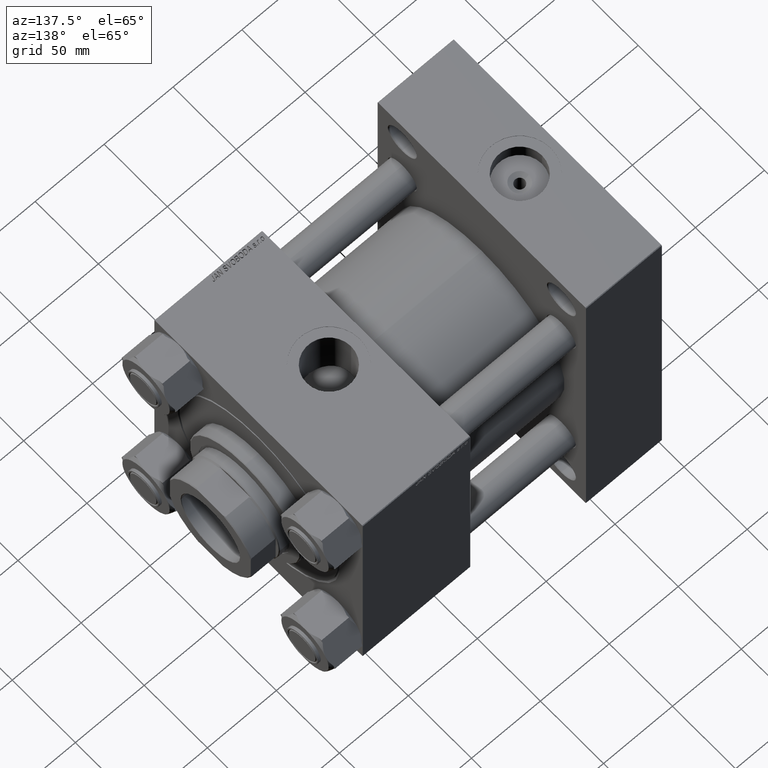
[diagram: clean part render]
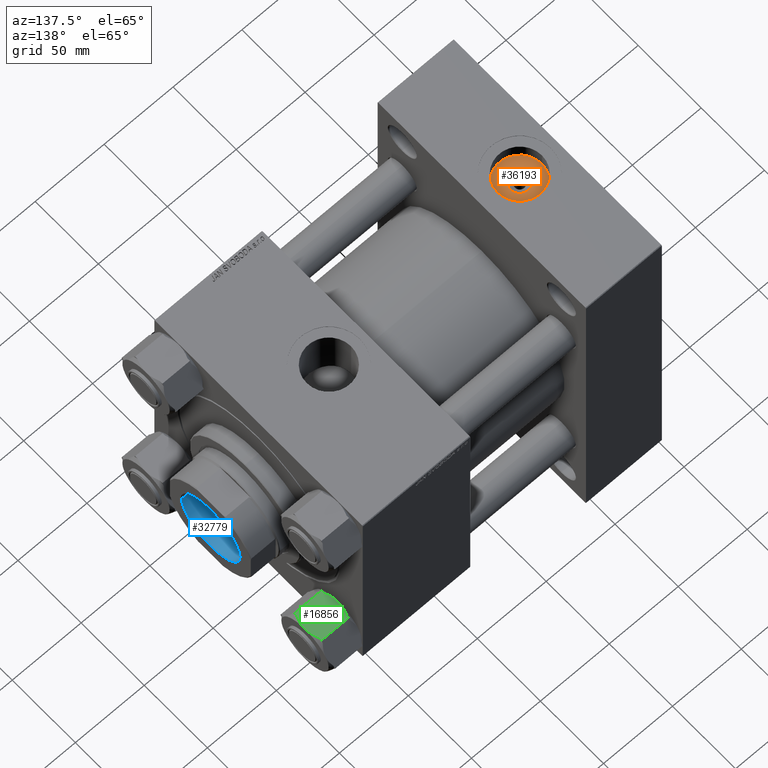
[diagram: same view with three faces highlighted in distinct colors, each labeled with its STEP entity id]
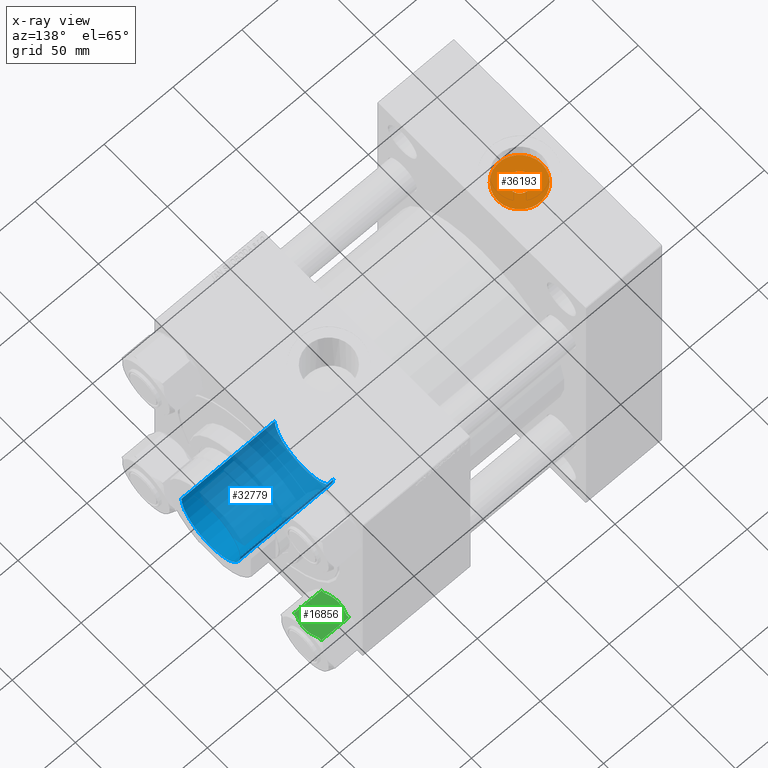
[diagram: x-ray of the same camera — body ghosted, the three highlighted faces saturated]
A machine part, auxiliary view with three faces highlighted in distinct colors.
The next image is the same camera in x-ray (body ghosted, the three faces saturated) — at least one of them is partly hidden behind the body in this view.
Their STEP definitions:

[orange] entity #36193 — the highlighted planar face has unit normal (0, 0, 1).
#858 = DIRECTION ( 'NONE',  ( 1.000000000000000000, 0.000000000000000000, -0.000000000000000000 ) ) ;
#998 = EDGE_LOOP ( 'NONE', ( #1712, #30792 ) ) ;
#1712 = ORIENTED_EDGE ( 'NONE', *, *, #50250, .T. ) ;
#1733 = AXIS2_PLACEMENT_3D ( 'NONE', #47552, #21243, #36825 ) ;
#4343 = VERTEX_POINT ( 'NONE', #9515 ) ;
#4689 = DIRECTION ( 'NONE',  ( 0.000000000000000000, 0.000000000000000000, 1.000000000000000000 ) ) ;
#5379 = CIRCLE ( 'NONE', #20868, 6.640000000000031655 ) ;
#8162 = DIRECTION ( 'NONE',  ( 1.000000000000000000, 0.000000000000000000, 0.000000000000000000 ) ) ;
#8654 = DIRECTION ( 'NONE',  ( -0.000000000000000000, -0.000000000000000000, -1.000000000000000000 ) ) ;
#9515 = CARTESIAN_POINT ( 'NONE',  ( 43.62000000000000455, -2.250935128525057001E-14, 112.7000000000000028 ) ) ;
#11496 = CARTESIAN_POINT ( 'NONE',  ( 27.50000000000000000, -2.250935128525057001E-14, 112.7000000000000028 ) ) ;
#11859 = FACE_BOUND ( 'NONE', #23104, .T. ) ;
#13069 = AXIS2_PLACEMENT_3D ( 'NONE', #43648, #8654, #39823 ) ;
#13881 = CIRCLE ( 'NONE', #13069, 6.640000000000031655 ) ;
#14443 = AXIS2_PLACEMENT_3D ( 'NONE', #16189, #4689, #858 ) ;
#16189 = CARTESIAN_POINT ( 'NONE',  ( 27.50000000000000000, -2.250935128525057001E-14, 112.7000000000000028 ) ) ;
#16657 = EDGE_CURVE ( 'NONE', #17804, #4343, #18508, .T. ) ;
#17141 = VERTEX_POINT ( 'NONE', #23176 ) ;
#17804 = VERTEX_POINT ( 'NONE', #35005 ) ;
#18423 = EDGE_CURVE ( 'NONE', #17141, #39329, #5379, .T. ) ;
#18508 = CIRCLE ( 'NONE', #38104, 16.12000000000000455 ) ;
#20868 = AXIS2_PLACEMENT_3D ( 'NONE', #43803, #21065, #39715 ) ;
#21065 = DIRECTION ( 'NONE',  ( -0.000000000000000000, -0.000000000000000000, -1.000000000000000000 ) ) ;
#21243 = DIRECTION ( 'NONE',  ( 0.000000000000000000, 0.000000000000000000, 1.000000000000000000 ) ) ;
#23104 = EDGE_LOOP ( 'NONE', ( #23690, #32387 ) ) ;
#23176 = CARTESIAN_POINT ( 'NONE',  ( 34.14000000000002899, -2.250935128525057001E-14, 112.7000000000000028 ) ) ;
#23690 = ORIENTED_EDGE ( 'NONE', *, *, #18423, .T. ) ;
#24102 = PLANE ( 'NONE',  #14443 ) ;
#29382 = CARTESIAN_POINT ( 'NONE',  ( 20.85999999999996390, -2.169618581061672396E-14, 112.7000000000000028 ) ) ;
#30792 = ORIENTED_EDGE ( 'NONE', *, *, #16657, .T. ) ;
#31649 = DIRECTION ( 'NONE',  ( 0.000000000000000000, 0.000000000000000000, 1.000000000000000000 ) ) ;
#32387 = ORIENTED_EDGE ( 'NONE', *, *, #48285, .T. ) ;
#35005 = CARTESIAN_POINT ( 'NONE',  ( 11.37999999999999012, -2.053522064502503677E-14, 112.7000000000000028 ) ) ;
#35610 = FACE_OUTER_BOUND ( 'NONE', #998, .T. ) ;
#36193 = ADVANCED_FACE ( 'NONE', ( #11859, #35610 ), #24102, .T. ) ;
#36825 = DIRECTION ( 'NONE',  ( 1.000000000000000000, 0.000000000000000000, 0.000000000000000000 ) ) ;
#38104 = AXIS2_PLACEMENT_3D ( 'NONE', #11496, #31649, #8162 ) ;
#39329 = VERTEX_POINT ( 'NONE', #29382 ) ;
#39715 = DIRECTION ( 'NONE',  ( 1.000000000000000000, 0.000000000000000000, 0.000000000000000000 ) ) ;
#39823 = DIRECTION ( 'NONE',  ( 1.000000000000000000, 0.000000000000000000, 0.000000000000000000 ) ) ;
#43648 = CARTESIAN_POINT ( 'NONE',  ( 27.50000000000000000, -2.250935128525057001E-14, 112.7000000000000028 ) ) ;
#43803 = CARTESIAN_POINT ( 'NONE',  ( 27.50000000000000000, -2.250935128525057001E-14, 112.7000000000000028 ) ) ;
#47552 = CARTESIAN_POINT ( 'NONE',  ( 27.50000000000000000, -2.250935128525057001E-14, 112.7000000000000028 ) ) ;
#48285 = EDGE_CURVE ( 'NONE', #39329, #17141, #13881, .T. ) ;
#49040 = CIRCLE ( 'NONE', #1733, 16.12000000000000455 ) ;
#50250 = EDGE_CURVE ( 'NONE', #4343, #17804, #49040, .T. ) ;

[blue] entity #32779 — the highlighted cylindrical surface (partial cylindrical patch) has radius 23.25 mm, axis along (1, 0, 0).
#1015 = EDGE_CURVE ( 'NONE', #4030, #27596, #38856, .T. ) ;
#4030 = VERTEX_POINT ( 'NONE', #38910 ) ;
#4341 = CARTESIAN_POINT ( 'NONE',  ( 23.24999999999999289, 0.000000000000000000, 196.6999999999999602 ) ) ;
#4637 = AXIS2_PLACEMENT_3D ( 'NONE', #10516, #11508, #41440 ) ;
#5849 = DIRECTION ( 'NONE',  ( 1.000000000000000000, 0.000000000000000000, 0.000000000000000000 ) ) ;
#5859 = DIRECTION ( 'NONE',  ( -0.000000000000000000, -0.000000000000000000, 1.000000000000000000 ) ) ;
#9242 = CARTESIAN_POINT ( 'NONE',  ( -23.24999999999999289, 2.847303808017595350E-15, 196.6999999999999602 ) ) ;
#9701 = CARTESIAN_POINT ( 'NONE',  ( 0.000000000000000000, 0.000000000000000000, 196.9999999999999716 ) ) ;
#9875 = VERTEX_POINT ( 'NONE', #4341 ) ;
#10516 = CARTESIAN_POINT ( 'NONE',  ( 0.000000000000000000, 0.000000000000000000, 196.6999999999999602 ) ) ;
#11508 = DIRECTION ( 'NONE',  ( 0.000000000000000000, 0.000000000000000000, 1.000000000000000000 ) ) ;
#12016 = EDGE_CURVE ( 'NONE', #27731, #4030, #30544, .T. ) ;
#12309 = LINE ( 'NONE', #28125, #30683 ) ;
#15362 = CARTESIAN_POINT ( 'NONE',  ( -23.24999999999999289, 2.847303808017595350E-15, 196.9999999999999716 ) ) ;
#16331 = EDGE_CURVE ( 'NONE', #27731, #9875, #12309, .T. ) ;
#17106 = FACE_OUTER_BOUND ( 'NONE', #18228, .T. ) ;
#17155 = ORIENTED_EDGE ( 'NONE', *, *, #37521, .T. ) ;
#18228 = EDGE_LOOP ( 'NONE', ( #41511, #35624, #46700, #17155 ) ) ;
#18883 = VECTOR ( 'NONE', #50357, 1000.000000000000000 ) ;
#24499 = DIRECTION ( 'NONE',  ( 1.000000000000000000, 0.000000000000000000, 0.000000000000000000 ) ) ;
#25001 = CARTESIAN_POINT ( 'NONE',  ( 0.000000000000000000, 0.000000000000000000, 128.9999999999999716 ) ) ;
#26678 = CIRCLE ( 'NONE', #4637, 23.24999999999999289 ) ;
#27596 = VERTEX_POINT ( 'NONE', #9242 ) ;
#27731 = VERTEX_POINT ( 'NONE', #27809 ) ;
#27809 = CARTESIAN_POINT ( 'NONE',  ( 23.24999999999998579, 0.000000000000000000, 128.9999999999999716 ) ) ;
#28125 = CARTESIAN_POINT ( 'NONE',  ( 23.24999999999999289, 0.000000000000000000, 196.9999999999999716 ) ) ;
#28313 = DIRECTION ( 'NONE',  ( -0.000000000000000000, -0.000000000000000000, 1.000000000000000000 ) ) ;
#29834 = AXIS2_PLACEMENT_3D ( 'NONE', #9701, #5859, #24499 ) ;
#30544 = CIRCLE ( 'NONE', #33847, 23.24999999999998579 ) ;
#30683 = VECTOR ( 'NONE', #48320, 1000.000000000000000 ) ;
#32779 = ADVANCED_FACE ( 'NONE', ( #17106 ), #39841, .F. ) ;
#33847 = AXIS2_PLACEMENT_3D ( 'NONE', #25001, #28313, #5849 ) ;
#35624 = ORIENTED_EDGE ( 'NONE', *, *, #12016, .F. ) ;
#37521 = EDGE_CURVE ( 'NONE', #9875, #27596, #26678, .T. ) ;
#38856 = LINE ( 'NONE', #15362, #18883 ) ;
#38910 = CARTESIAN_POINT ( 'NONE',  ( -23.24999999999998579, 2.847303808017594561E-15, 128.9999999999999716 ) ) ;
#39841 = CYLINDRICAL_SURFACE ( 'NONE', #29834, 23.24999999999999289 ) ;
#41440 = DIRECTION ( 'NONE',  ( 1.000000000000000000, 0.000000000000000000, 0.000000000000000000 ) ) ;
#41511 = ORIENTED_EDGE ( 'NONE', *, *, #1015, .F. ) ;
#46700 = ORIENTED_EDGE ( 'NONE', *, *, #16331, .T. ) ;
#48320 = DIRECTION ( 'NONE',  ( -0.000000000000000000, -0.000000000000000000, 1.000000000000000000 ) ) ;
#50357 = DIRECTION ( 'NONE',  ( -0.000000000000000000, -0.000000000000000000, 1.000000000000000000 ) ) ;

[green] entity #16856 — the highlighted planar face has unit normal (-0, 0, -1).
#988 = FACE_OUTER_BOUND ( 'NONE', #2042, .T. ) ;
#1335 = VERTEX_POINT ( 'NONE', #33725 ) ;
#2042 = EDGE_LOOP ( 'NONE', ( #29696, #21757, #4610, #4563, #8829, #11071, #47474, #48036, #44677, #21134 ) ) ;
#2433 = CARTESIAN_POINT ( 'NONE',  ( -6.014330298555141674, -18.72346922981957107, -23.06950926946396763 ) ) ;
#2594 = CARTESIAN_POINT ( 'NONE',  ( 3.004629197474318457E-15, -18.72346922981956752, 0.000000000000000000 ) ) ;
#2683 = CARTESIAN_POINT ( 'NONE',  ( 3.004629197474318457E-15, -18.72346922981956752, -24.00000000000000000 ) ) ;
#3587 = CARTESIAN_POINT ( 'NONE',  ( -7.462432408233331316, -18.72346922981957107, -1.420646699533969048 ) ) ;
#3619 = CARTESIAN_POINT ( 'NONE',  ( 3.806221811192783466, -18.72346922981956396, -0.3694591241840480822 ) ) ;
#4563 = ORIENTED_EDGE ( 'NONE', *, *, #27226, .F. ) ;
#4610 = ORIENTED_EDGE ( 'NONE', *, *, #7303, .F. ) ;
#5524 = LINE ( 'NONE', #40530, #23315 ) ;
#5583 = LINE ( 'NONE', #47463, #34674 ) ;
#5590 = VERTEX_POINT ( 'NONE', #48576 ) ;
#7188 = CARTESIAN_POINT ( 'NONE',  ( -3.046460787050289998, -18.72346922981957462, -0.1914528163786858583 ) ) ;
#7303 = EDGE_CURVE ( 'NONE', #5590, #10592, #48661, .T. ) ;
#7438 = CARTESIAN_POINT ( 'NONE',  ( -10.81000000000000227, -18.72346922981957107, -22.00000000000000000 ) ) ;
#8829 = ORIENTED_EDGE ( 'NONE', *, *, #17650, .F. ) ;
#8926 = CARTESIAN_POINT ( 'NONE',  ( 10.81000000000000405, -18.72346922981956752, -24.00000000000000000 ) ) ;
#10452 = EDGE_CURVE ( 'NONE', #42929, #28512, #32011, .T. ) ;
#10592 = VERTEX_POINT ( 'NONE', #48110 ) ;
#11071 = ORIENTED_EDGE ( 'NONE', *, *, #31490, .F. ) ;
#11168 = CARTESIAN_POINT ( 'NONE',  ( 6.004110770065000047, -18.72346922981956396, -23.07284951269627271 ) ) ;
#11256 = CARTESIAN_POINT ( 'NONE',  ( -6.004110770064991165, -18.72346922981957107, -0.9271504873037145211 ) ) ;
#11290 = CARTESIAN_POINT ( 'NONE',  ( 0.7711943830713889891, -18.72346922981957107, -0.01195010307162253961 ) ) ;
#11536 = CARTESIAN_POINT ( 'NONE',  ( 3.058371725687362375, -18.72346922981956752, -0.2332142928950717009 ) ) ;
#12126 = VERTEX_POINT ( 'NONE', #24486 ) ;
#12795 = CARTESIAN_POINT ( 'NONE',  ( 8.882222521378219326, -18.72346922981957107, -2.000000000000000000 ) ) ;
#13619 = CARTESIAN_POINT ( 'NONE',  ( 10.81000000000000405, -18.72346922981956752, -22.00000000000000000 ) ) ;
#14004 = LINE ( 'NONE', #24982, #28416 ) ;
#14895 = EDGE_CURVE ( 'NONE', #28512, #21635, #5524, .T. ) ;
#15375 = CARTESIAN_POINT ( 'NONE',  ( 5.284196261866815902, -18.72346922981957107, -0.7181181227872849293 ) ) ;
#16555 = DIRECTION ( 'NONE',  ( 1.000000000000000000, 1.604739570746352049E-16, -0.000000000000000000 ) ) ;
#16856 = ADVANCED_FACE ( 'NONE', ( #988 ), #36515, .F. ) ;
#17077 = DIRECTION ( 'NONE',  ( -0.000000000000000000, -0.000000000000000000, 1.000000000000000000 ) ) ;
#17501 = CARTESIAN_POINT ( 'NONE',  ( -0.7711943830713903214, -18.72346922981957107, -23.98804989692839129 ) ) ;
#17524 = DIRECTION ( 'NONE',  ( -0.000000000000000000, -0.000000000000000000, 1.000000000000000000 ) ) ;
#17650 = EDGE_CURVE ( 'NONE', #42537, #1335, #22434, .T. ) ;
#17849 = CARTESIAN_POINT ( 'NONE',  ( -10.81000000000000227, -18.72346922981957107, -2.000000000000001776 ) ) ;
#18950 = CARTESIAN_POINT ( 'NONE',  ( 3.004629197474318457E-15, -18.72346922981956752, 0.000000000000000000 ) ) ;
#19322 = CARTESIAN_POINT ( 'NONE',  ( 8.882222521378228208, -18.72346922981957107, -22.00000000000000000 ) ) ;
#19928 = VERTEX_POINT ( 'NONE', #13619 ) ;
#21134 = ORIENTED_EDGE ( 'NONE', *, *, #31699, .F. ) ;
#21635 = VERTEX_POINT ( 'NONE', #17849 ) ;
#21757 = ORIENTED_EDGE ( 'NONE', *, *, #40529, .T. ) ;
#22434 = B_SPLINE_CURVE_WITH_KNOTS ( 'NONE', 3,
 ( #22992, #22504, #3587, #11256, #26335, #7188, #33761, #2594 ),
 .UNSPECIFIED., .F., .F.,
 ( 4, 2, 2, 4 ),
 ( 0.02914159164821653047, 0.03142872273350533208, 0.03371585381879412674, 0.03829011598937172300 ),
 .UNSPECIFIED. ) ;
#22457 = EDGE_CURVE ( 'NONE', #19928, #12126, #32596, .T. ) ;
#22504 = CARTESIAN_POINT ( 'NONE',  ( -8.180319050237796930, -18.72346922981957107, -1.699159308219204023 ) ) ;
#22598 = AXIS2_PLACEMENT_3D ( 'NONE', #8926, #28315, #43919 ) ;
#22631 = VECTOR ( 'NONE', #39483, 1000.000000000000000 ) ;
#22992 = CARTESIAN_POINT ( 'NONE',  ( -8.882222521378212221, -18.72346922981957107, -2.000000000000000000 ) ) ;
#23315 = VECTOR ( 'NONE', #17524, 1000.000000000000000 ) ;
#24486 = CARTESIAN_POINT ( 'NONE',  ( 8.882222521378228208, -18.72346922981957107, -22.00000000000000000 ) ) ;
#24982 = CARTESIAN_POINT ( 'NONE',  ( 10.81000000000000405, -18.72346922981956752, -24.00000000000000000 ) ) ;
#25161 = CARTESIAN_POINT ( 'NONE',  ( -8.882222521378221103, -18.72346922981957107, -22.00000000000000000 ) ) ;
#25406 = CARTESIAN_POINT ( 'NONE',  ( -5.284196261866815014, -18.72346922981957462, -23.28188187721271873 ) ) ;
#25490 = EDGE_CURVE ( 'NONE', #41174, #42929, #34834, .T. ) ;
#25593 = B_SPLINE_CURVE_WITH_KNOTS ( 'NONE', 3,
 ( #18950, #34539, #11290, #26862, #42464, #11536, #3619, #15375, #30952, #46529, #42712, #12795 ),
 .UNSPECIFIED., .F., .F.,
 ( 4, 2, 2, 2, 2, 4 ),
 ( 0.03829011598937172300, 0.03943115666170208394, 0.04057219733403243794, 0.04285427867869315982, 0.04513636002335387476, 0.04741844136801459664 ),
 .UNSPECIFIED. ) ;
#25655 = DIRECTION ( 'NONE',  ( 1.000000000000000000, 1.604739570746352049E-16, -0.000000000000000000 ) ) ;
#26335 = CARTESIAN_POINT ( 'NONE',  ( -5.269460841173472687, -18.72346922981957107, -0.7140404030614193598 ) ) ;
#26429 = VECTOR ( 'NONE', #39423, 1000.000000000000000 ) ;
#26495 = CARTESIAN_POINT ( 'NONE',  ( 7.462432408233343750, -18.72346922981956752, -22.57935330046602829 ) ) ;
#26862 = CARTESIAN_POINT ( 'NONE',  ( 1.539734355582365488, -18.72346922981957107, -0.05928825380228582714 ) ) ;
#27226 = EDGE_CURVE ( 'NONE', #1335, #5590, #25593, .T. ) ;
#28315 = DIRECTION ( 'NONE',  ( -1.604739570746352049E-16, 1.000000000000000000, 0.000000000000000000 ) ) ;
#28416 = VECTOR ( 'NONE', #17077, 1000.000000000000000 ) ;
#28512 = VERTEX_POINT ( 'NONE', #7438 ) ;
#28746 = CARTESIAN_POINT ( 'NONE',  ( 10.81000000000000405, -18.72346922981956752, -22.00000000000000000 ) ) ;
#29696 = ORIENTED_EDGE ( 'NONE', *, *, #22457, .F. ) ;
#30952 = CARTESIAN_POINT ( 'NONE',  ( 6.014330298555141674, -18.72346922981956752, -0.9304907305360369252 ) ) ;
#31490 = EDGE_CURVE ( 'NONE', #21635, #42537, #5583, .T. ) ;
#31699 = EDGE_CURVE ( 'NONE', #12126, #41174, #38661, .T. ) ;
#32011 = LINE ( 'NONE', #34860, #26429 ) ;
#32596 = LINE ( 'NONE', #28746, #22631 ) ;
#32834 = CARTESIAN_POINT ( 'NONE',  ( -3.806221811192784354, -18.72346922981957107, -23.63054087581594587 ) ) ;
#33091 = CARTESIAN_POINT ( 'NONE',  ( -1.539734355582366376, -18.72346922981957462, -23.94071174619771369 ) ) ;
#33348 = CARTESIAN_POINT ( 'NONE',  ( -3.058371725687357046, -18.72346922981957107, -23.76678570710493332 ) ) ;
#33725 = CARTESIAN_POINT ( 'NONE',  ( 3.004629197474318457E-15, -18.72346922981956752, 0.000000000000000000 ) ) ;
#33761 = CARTESIAN_POINT ( 'NONE',  ( -1.538851192155974212, -18.72346922981957107, -1.998997755520148800E-15 ) ) ;
#34539 = CARTESIAN_POINT ( 'NONE',  ( 0.3838633933595256287, -18.72346922981957107, -1.668549026972564289E-15 ) ) ;
#34674 = VECTOR ( 'NONE', #16555, 1000.000000000000000 ) ;
#34834 = B_SPLINE_CURVE_WITH_KNOTS ( 'NONE', 3,
 ( #2683, #41772, #17501, #33091, #44838, #33348, #32834, #25406, #2433, #48412, #45086, #25161 ),
 .UNSPECIFIED., .F., .F.,
 ( 4, 2, 2, 2, 2, 4 ),
 ( 0.03829011598937171607, 0.03943115666170207700, 0.04057219733403243100, 0.04285427867869314594, 0.04513636002335386782, 0.04741844136801458276 ),
 .UNSPECIFIED. ) ;
#34860 = CARTESIAN_POINT ( 'NONE',  ( 10.81000000000000405, -18.72346922981956752, -22.00000000000000000 ) ) ;
#34920 = CARTESIAN_POINT ( 'NONE',  ( 8.180319050237811140, -18.72346922981957107, -22.30084069178079176 ) ) ;
#36122 = VECTOR ( 'NONE', #25655, 1000.000000000000000 ) ;
#36402 = CARTESIAN_POINT ( 'NONE',  ( 10.81000000000000405, -18.72346922981956752, -2.000000000000001776 ) ) ;
#36515 = PLANE ( 'NONE',  #22598 ) ;
#36688 = CARTESIAN_POINT ( 'NONE',  ( -8.882222521378221103, -18.72346922981957107, -22.00000000000000000 ) ) ;
#38012 = CARTESIAN_POINT ( 'NONE',  ( 3.046460787050289554, -18.72346922981956396, -23.80854718362131806 ) ) ;
#38261 = CARTESIAN_POINT ( 'NONE',  ( 3.004629197474318457E-15, -18.72346922981956752, -24.00000000000000000 ) ) ;
#38661 = B_SPLINE_CURVE_WITH_KNOTS ( 'NONE', 3,
 ( #19322, #34920, #26495, #11168, #38994, #38012, #45916, #38261 ),
 .UNSPECIFIED., .F., .F.,
 ( 4, 2, 2, 4 ),
 ( 0.02914159164821651660, 0.03142872273350531820, 0.03371585381879411286, 0.03829011598937171607 ),
 .UNSPECIFIED. ) ;
#38994 = CARTESIAN_POINT ( 'NONE',  ( 5.269460841173475352, -18.72346922981956752, -23.28595959693858219 ) ) ;
#39423 = DIRECTION ( 'NONE',  ( -1.000000000000000000, -1.604739570746352049E-16, 0.000000000000000000 ) ) ;
#39483 = DIRECTION ( 'NONE',  ( -1.000000000000000000, -1.604739570746352049E-16, 0.000000000000000000 ) ) ;
#40529 = EDGE_CURVE ( 'NONE', #19928, #10592, #14004, .T. ) ;
#40530 = CARTESIAN_POINT ( 'NONE',  ( -10.81000000000000227, -18.72346922981957107, -24.00000000000000000 ) ) ;
#41174 = VERTEX_POINT ( 'NONE', #46524 ) ;
#41772 = CARTESIAN_POINT ( 'NONE',  ( -0.3838633933595258507, -18.72346922981957107, -24.00000000000000000 ) ) ;
#42464 = CARTESIAN_POINT ( 'NONE',  ( 1.921304447834805584, -18.72346922981956752, -0.09455906549445410036 ) ) ;
#42537 = VERTEX_POINT ( 'NONE', #42903 ) ;
#42712 = CARTESIAN_POINT ( 'NONE',  ( 8.177288578347873482, -18.72346922981957107, -1.697860426966551373 ) ) ;
#42903 = CARTESIAN_POINT ( 'NONE',  ( -8.882222521378212221, -18.72346922981957107, -2.000000000000000000 ) ) ;
#42929 = VERTEX_POINT ( 'NONE', #36688 ) ;
#43919 = DIRECTION ( 'NONE',  ( -1.000000000000000000, -1.604739570746352049E-16, 0.000000000000000000 ) ) ;
#44677 = ORIENTED_EDGE ( 'NONE', *, *, #25490, .F. ) ;
#44838 = CARTESIAN_POINT ( 'NONE',  ( -1.921304447834799145, -18.72346922981957107, -23.90544093450554186 ) ) ;
#45086 = CARTESIAN_POINT ( 'NONE',  ( -8.177288578347869930, -18.72346922981957462, -22.30213957303345040 ) ) ;
#45916 = CARTESIAN_POINT ( 'NONE',  ( 1.538851192155977765, -18.72346922981957462, -24.00000000000000711 ) ) ;
#46524 = CARTESIAN_POINT ( 'NONE',  ( 3.004629197474318457E-15, -18.72346922981956752, -24.00000000000000000 ) ) ;
#46529 = CARTESIAN_POINT ( 'NONE',  ( 7.459573834530414338, -18.72346922981956752, -1.419798007050264710 ) ) ;
#47463 = CARTESIAN_POINT ( 'NONE',  ( 10.81000000000000405, -18.72346922981956752, -2.000000000000001776 ) ) ;
#47474 = ORIENTED_EDGE ( 'NONE', *, *, #14895, .F. ) ;
#48036 = ORIENTED_EDGE ( 'NONE', *, *, #10452, .F. ) ;
#48110 = CARTESIAN_POINT ( 'NONE',  ( 10.81000000000000405, -18.72346922981956752, -2.000000000000001776 ) ) ;
#48412 = CARTESIAN_POINT ( 'NONE',  ( -7.459573834530412562, -18.72346922981957107, -22.58020199294974262 ) ) ;
#48576 = CARTESIAN_POINT ( 'NONE',  ( 8.882222521378219326, -18.72346922981957107, -2.000000000000000000 ) ) ;
#48661 = LINE ( 'NONE', #36402, #36122 ) ;